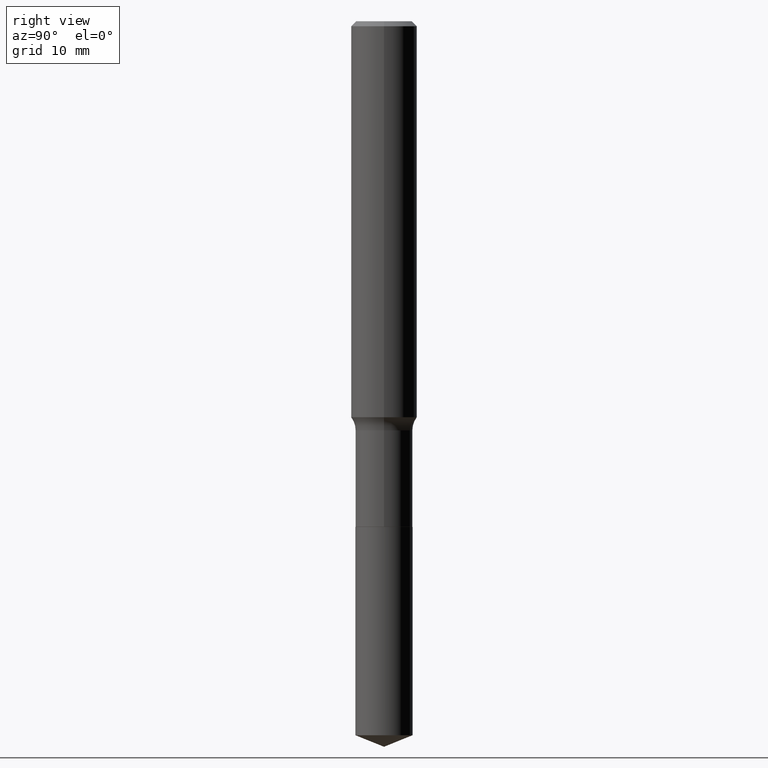
[diagram: clean part render]
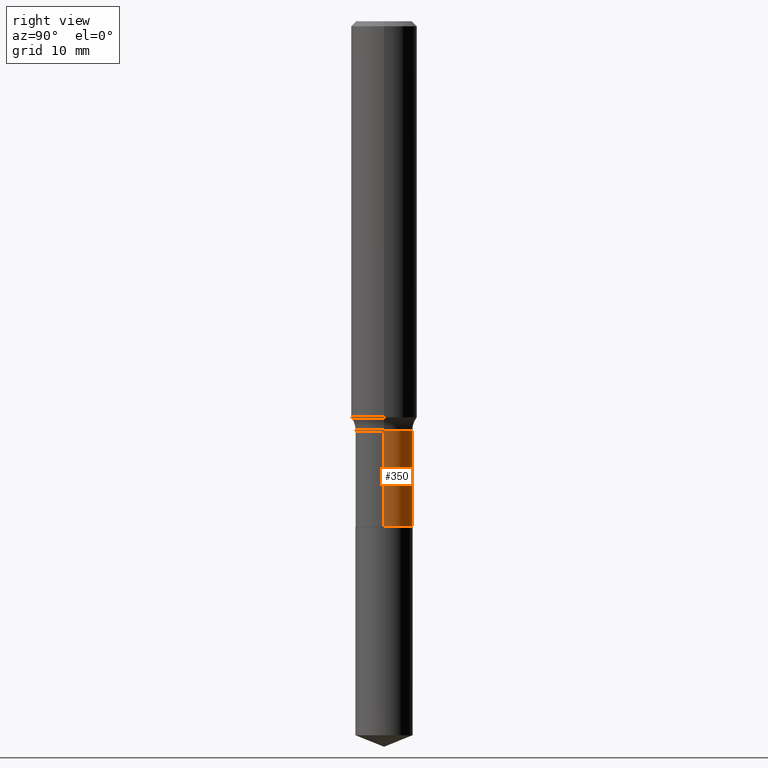
[diagram: same view with one face highlighted and labeled with its STEP entity id]
A machine part, right view. The second image highlights one B-rep face of the part: STEP entity #350.
In plain terms, the highlighted cylindrical surface (edge-blend (fillet) strip) has radius 2.5997 mm, axis along (-0, 0, 1).
Its self-contained STEP definition (entity closure, byte-faithful):
#9 = FACE_OUTER_BOUND ( 'NONE', #159, .T. ) ;
#38 = DIRECTION ( 'NONE',  ( -2.445468806185136597E-29, 3.491481338843145583E-15, 1.000000000000000000 ) ) ;
#39 = VECTOR ( 'NONE', #405, 39.37007874015748143 ) ;
#43 = CARTESIAN_POINT ( 'NONE',  ( 3.583345441703080279E-29, -5.116067605806860307E-15, -1.465299999999999825 ) ) ;
#49 = CARTESIAN_POINT ( 'NONE',  ( 0.1023499999999999965, -7.036033194036704874E-15, -1.810499999999999998 ) ) ;
#84 = AXIS2_PLACEMENT_3D ( 'NONE', #43, #417, #257 ) ;
#89 = EDGE_CURVE ( 'NONE', #423, #165, #168, .T. ) ;
#101 = EDGE_CURVE ( 'NONE', #448, #439, #206, .T. ) ;
#127 = DIRECTION ( 'NONE',  ( 1.000000000000000000, -6.982962677686266711E-15, 4.876176775795936353E-29 ) ) ;
#154 = CYLINDRICAL_SURFACE ( 'NONE', #473, 0.1023499999999999827 ) ;
#159 = EDGE_LOOP ( 'NONE', ( #352, #430, #380, #461 ) ) ;
#165 = VERTEX_POINT ( 'NONE', #222 ) ;
#168 = CIRCLE ( 'NONE', #84, 0.1023499999999999688 ) ;
#170 = CARTESIAN_POINT ( 'NONE',  ( 0.000000000000000000, 0.000000000000000000, 0.000000000000000000 ) ) ;
#206 = CIRCLE ( 'NONE', #484, 0.1023499999999999965 ) ;
#222 = CARTESIAN_POINT ( 'NONE',  ( -0.1023499999999999688, -4.991456794840725672E-15, -1.465299999999999825 ) ) ;
#234 = EDGE_CURVE ( 'NONE', #439, #165, #249, .T. ) ;
#249 = LINE ( 'NONE', #293, #39 ) ;
#257 = DIRECTION ( 'NONE',  ( 1.000000000000000000, -6.982962677686262766E-15, 0.000000000000000000 ) ) ;
#260 = VECTOR ( 'NONE', #424, 39.37007874015748143 ) ;
#272 = EDGE_CURVE ( 'NONE', #448, #423, #309, .T. ) ;
#293 = CARTESIAN_POINT ( 'NONE',  ( -0.1023499999999999827, 7.272404900504624170E-16, -5.034530064875895945E-30 ) ) ;
#305 = CARTESIAN_POINT ( 'NONE',  ( 0.1023499999999999827, -7.147062300611892976E-16, 4.990766930027139796E-30 ) ) ;
#309 = LINE ( 'NONE', #305, #260 ) ;
#317 = DIRECTION ( 'NONE',  ( -2.445468806185136597E-29, 3.491481338843145583E-15, 1.000000000000000000 ) ) ;
#350 = ADVANCED_FACE ( 'NONE', ( #9 ), #154, .T. ) ;
#352 = ORIENTED_EDGE ( 'NONE', *, *, #101, .T. ) ;
#380 = ORIENTED_EDGE ( 'NONE', *, *, #89, .F. ) ;
#405 = DIRECTION ( 'NONE',  ( -2.445468806185136877E-29, 3.491481338843145188E-15, 1.000000000000000000 ) ) ;
#410 = CARTESIAN_POINT ( 'NONE',  ( 4.427521273598189436E-29, -6.321326963975514491E-15, -1.810499999999999998 ) ) ;
#417 = DIRECTION ( 'NONE',  ( -2.445468806185136597E-29, 3.491481338843145583E-15, 1.000000000000000000 ) ) ;
#420 = CARTESIAN_POINT ( 'NONE',  ( 0.1023499999999999688, -5.830773835868049112E-15, -1.465299999999999825 ) ) ;
#423 = VERTEX_POINT ( 'NONE', #420 ) ;
#424 = DIRECTION ( 'NONE',  ( -2.445468806185136877E-29, 3.491481338843145188E-15, 1.000000000000000000 ) ) ;
#430 = ORIENTED_EDGE ( 'NONE', *, *, #234, .T. ) ;
#439 = VERTEX_POINT ( 'NONE', #462 ) ;
#448 = VERTEX_POINT ( 'NONE', #49 ) ;
#461 = ORIENTED_EDGE ( 'NONE', *, *, #272, .F. ) ;
#462 = CARTESIAN_POINT ( 'NONE',  ( -0.1023499999999999965, -4.991456794840725672E-15, -1.810499999999999998 ) ) ;
#473 = AXIS2_PLACEMENT_3D ( 'NONE', #170, #317, #127 ) ;
#483 = DIRECTION ( 'NONE',  ( 1.000000000000000000, -6.982962677686270655E-15, 0.000000000000000000 ) ) ;
#484 = AXIS2_PLACEMENT_3D ( 'NONE', #410, #38, #483 ) ;